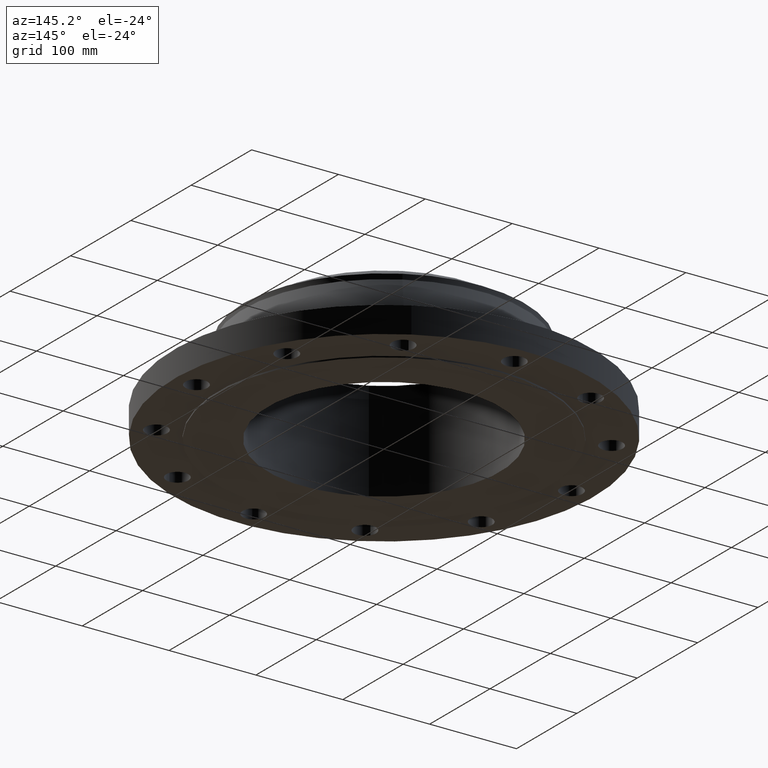
[diagram: clean part render]
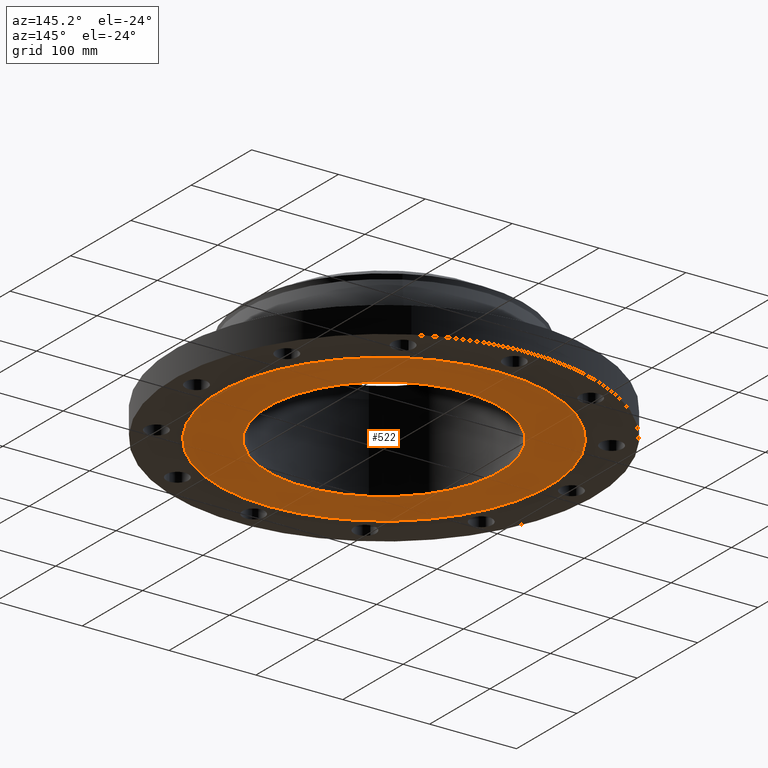
[diagram: same view with one face highlighted and labeled with its STEP entity id]
A machine part, auxiliary view. The second image highlights one B-rep face of the part: STEP entity #522.
In plain terms, the highlighted planar face has unit normal (0, 0, -1).
Its self-contained STEP definition (entity closure, byte-faithful):
#427=AXIS2_PLACEMENT_3D('Circle Axis2P3D',#425,#426,$) ;
#446=AXIS2_PLACEMENT_3D('Circle Axis2P3D',#444,#445,$) ;
#498=AXIS2_PLACEMENT_3D('Plane Axis2P3D',#495,#496,#497) ;
#502=AXIS2_PLACEMENT_3D('Circle Axis2P3D',#500,#501,$) ;
#511=AXIS2_PLACEMENT_3D('Circle Axis2P3D',#509,#510,$) ;
#422=CARTESIAN_POINT('Vertex',(-2.51698407768,-4.60730844994,-0.0625000000003)) ;
#425=CARTESIAN_POINT('Axis2P3D Location',(0.,0.,-0.0625000000003)) ;
#429=CARTESIAN_POINT('Vertex',(2.51698407768,4.60730844994,-0.0625000000003)) ;
#444=CARTESIAN_POINT('Axis2P3D Location',(0.,0.,-0.0625000000003)) ;
#495=CARTESIAN_POINT('Axis2P3D Location',(0.,5.25000000002,-0.0625000000003)) ;
#500=CARTESIAN_POINT('Axis2P3D Location',(0.,0.,-0.0625000000003)) ;
#504=CARTESIAN_POINT('Vertex',(-3.59569153955,-6.5818692142,-0.0625000000002)) ;
#506=CARTESIAN_POINT('Vertex',(3.59569153955,6.5818692142,-0.0625000000002)) ;
#509=CARTESIAN_POINT('Axis2P3D Location',(0.,0.,-0.0625000000003)) ;
#426=DIRECTION('Axis2P3D Direction',(0.,0.,-0.0393700787402)) ;
#445=DIRECTION('Axis2P3D Direction',(0.,0.,-0.0393700787402)) ;
#496=DIRECTION('Axis2P3D Direction',(0.,0.,-0.0393700787402)) ;
#497=DIRECTION('Axis2P3D XDirection',(0.0393700787402,0.,0.)) ;
#501=DIRECTION('Axis2P3D Direction',(0.,0.,-0.0393700787402)) ;
#510=DIRECTION('Axis2P3D Direction',(0.,0.,-0.0393700787402)) ;
#515=ORIENTED_EDGE('',*,*,#508,.T.) ;
#516=ORIENTED_EDGE('',*,*,#513,.T.) ;
#519=ORIENTED_EDGE('',*,*,#448,.F.) ;
#520=ORIENTED_EDGE('',*,*,#431,.F.) ;
#521=FACE_BOUND('',#518,.T.) ;
#522=ADVANCED_FACE('PartBody',(#517,#521),#499,.T.) ;
#428=CIRCLE('generated circle',#427,5.25000000002) ;
#447=CIRCLE('generated circle',#446,5.25000000002) ;
#503=CIRCLE('generated circle',#502,7.50000000003) ;
#512=CIRCLE('generated circle',#511,7.50000000003) ;
#431=EDGE_CURVE('',#423,#430,#428,.T.) ;
#448=EDGE_CURVE('',#430,#423,#447,.T.) ;
#508=EDGE_CURVE('',#505,#507,#503,.T.) ;
#513=EDGE_CURVE('',#507,#505,#512,.T.) ;
#514=EDGE_LOOP('',(#515,#516)) ;
#518=EDGE_LOOP('',(#519,#520)) ;
#517=FACE_OUTER_BOUND('',#514,.T.) ;
#499=PLANE('',#498) ;
#423=VERTEX_POINT('',#422) ;
#430=VERTEX_POINT('',#429) ;
#505=VERTEX_POINT('',#504) ;
#507=VERTEX_POINT('',#506) ;